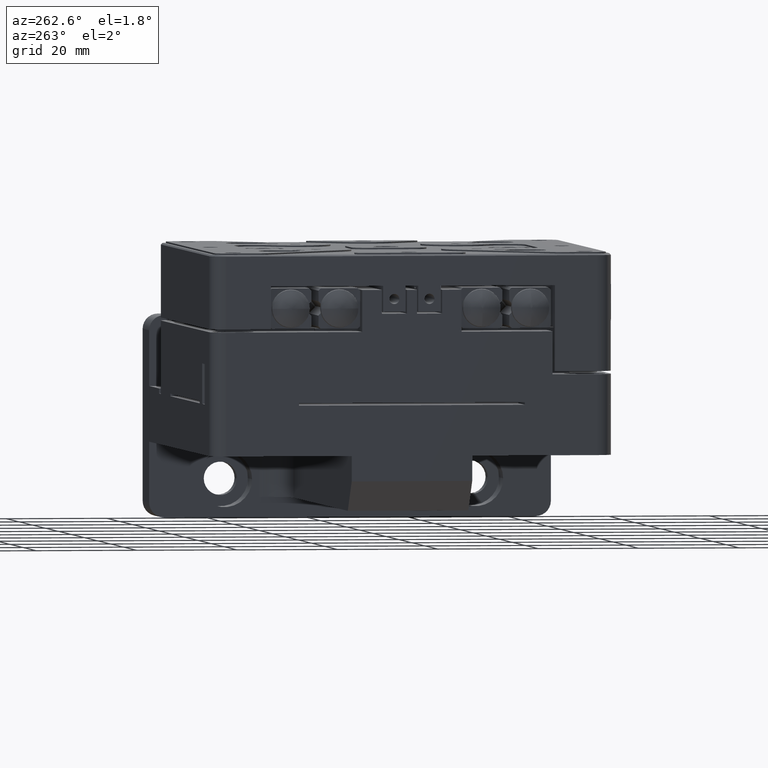
[diagram: clean part render]
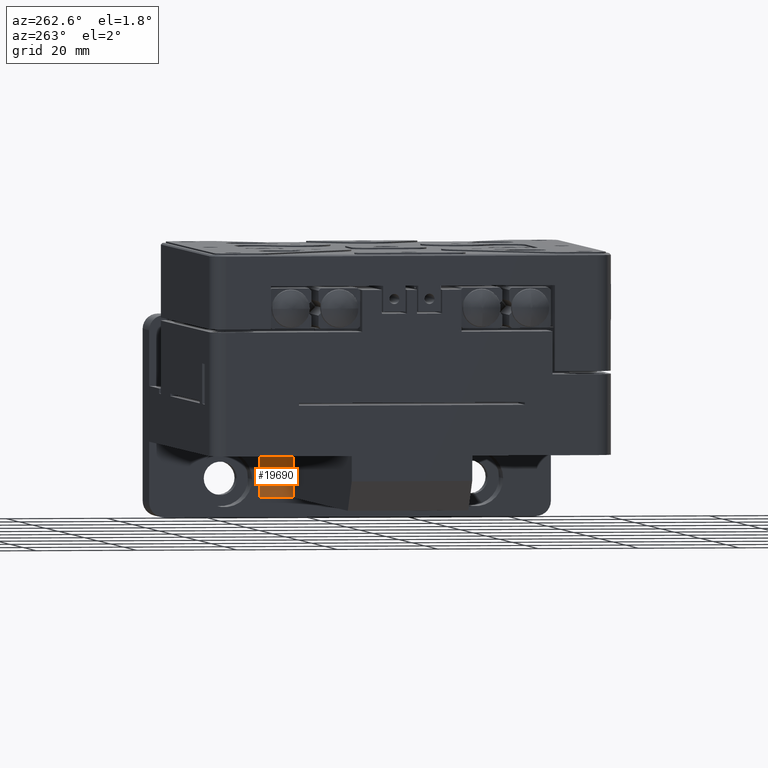
[diagram: same view with one face highlighted and labeled with its STEP entity id]
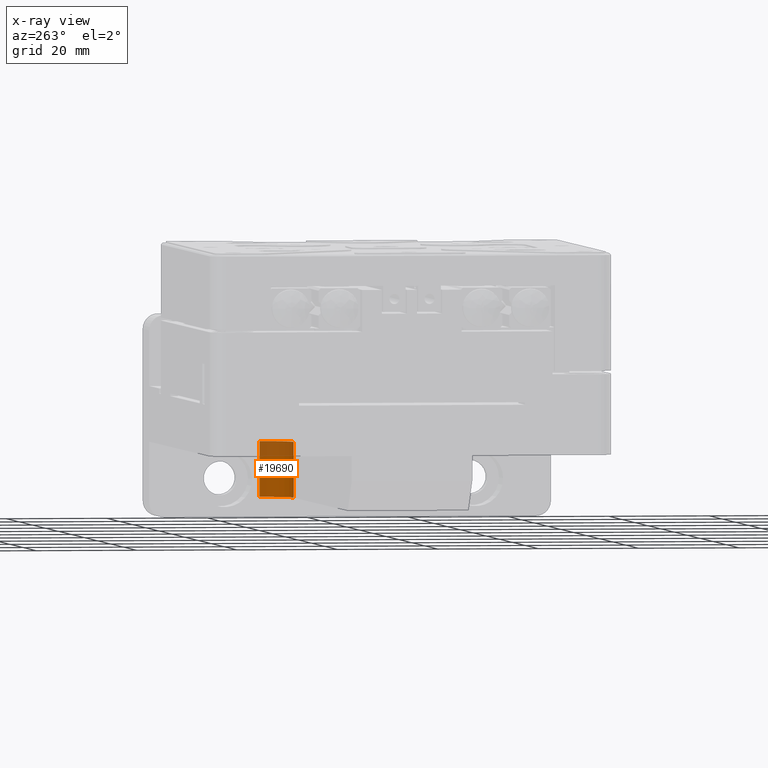
[diagram: x-ray of the same camera — body ghosted, the highlighted face saturated]
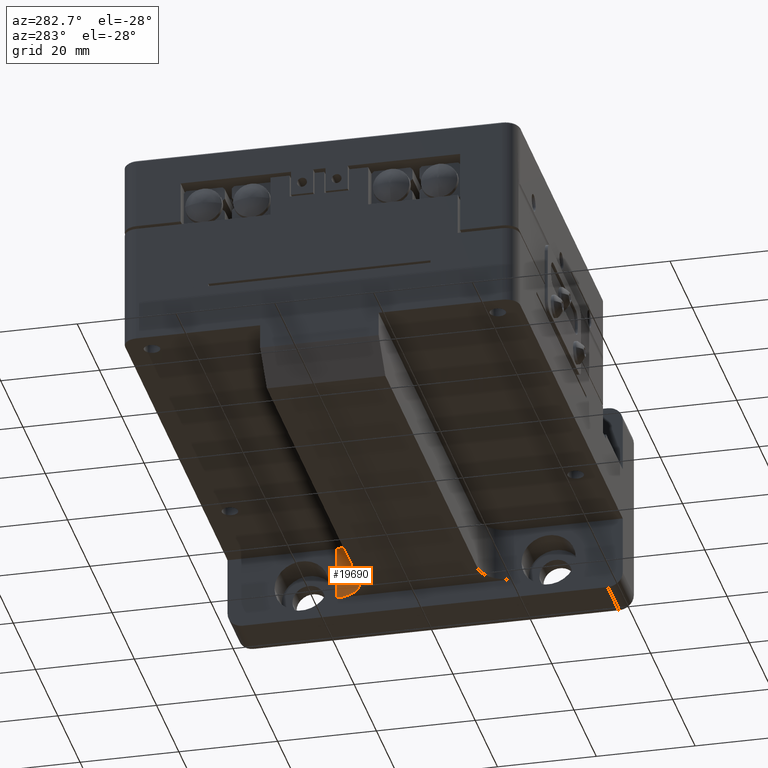
[diagram: same view with one face highlighted and labeled with its STEP entity id]
A machine part, auxiliary view. The second image highlights one B-rep face of the part: STEP entity #19690.
The next image is the same camera in x-ray: the body ghosted, the highlighted face saturated — about 27% of this face is hidden behind the body in this view.
A second angle (auxiliary view) of the same face is appended — the face is thin or edge-on in the first view.
In plain terms, the highlighted cylindrical surface (edge-blend (fillet) strip) has radius 6 mm, axis along (0, -0, -1).
Its self-contained STEP definition (entity closure, byte-faithful):
#1161 = EDGE_CURVE ( 'NONE', #46824, #38903, #4041, .T. ) ;
#1214 = DIRECTION ( 'NONE',  ( -1.000000000000000000, -2.312964634635740985E-16, -0.000000000000000000 ) ) ;
#1704 = ORIENTED_EDGE ( 'NONE', *, *, #8218, .T. ) ;
#3495 = DIRECTION ( 'NONE',  ( 1.000000000000000000, 2.312964634635740985E-16, -0.000000000000000000 ) ) ;
#4041 = CIRCLE ( 'NONE', #45418, 6.000000000000000000 ) ;
#5273 = DIRECTION ( 'NONE',  ( -1.000000000000000000, -2.312964634635740985E-16, 0.000000000000000000 ) ) ;
#7143 = VERTEX_POINT ( 'NONE', #35405 ) ;
#7940 = VERTEX_POINT ( 'NONE', #30851 ) ;
#8218 = EDGE_CURVE ( 'NONE', #46824, #7940, #18279, .T. ) ;
#12592 = DIRECTION ( 'NONE',  ( 2.891205793294678326E-16, -1.000000000000000000, 0.000000000000000000 ) ) ;
#13049 = AXIS2_PLACEMENT_3D ( 'NONE', #49810, #28558, #12592 ) ;
#13429 = EDGE_CURVE ( 'NONE', #7143, #7940, #21724, .T. ) ;
#13862 = CARTESIAN_POINT ( 'NONE',  ( -4.999999999999990230, 10.00000000000000888, -18.00000000000000711 ) ) ;
#16961 = CARTESIAN_POINT ( 'NONE',  ( -4.999999999999992006, 16.00000000000000711, -12.00000000000000000 ) ) ;
#17680 = DIRECTION ( 'NONE',  ( 2.891205793294678326E-16, -1.000000000000000000, 0.000000000000000000 ) ) ;
#18279 = LINE ( 'NONE', #25028, #18471 ) ;
#18471 = VECTOR ( 'NONE', #1214, 1000.000000000000000 ) ;
#19690 = ADVANCED_FACE ( 'NONE', ( #49260 ), #45395, .F. ) ;
#21724 = CIRCLE ( 'NONE', #53441, 6.000000000000000000 ) ;
#23189 = CARTESIAN_POINT ( 'NONE',  ( -4.999999999999992006, 16.00000000000001066, -18.00000000000000711 ) ) ;
#25028 = CARTESIAN_POINT ( 'NONE',  ( -4.999999999999990230, 10.00000000000001066, -18.00000000000000711 ) ) ;
#28558 = DIRECTION ( 'NONE',  ( -1.000000000000000000, -2.312964634635740985E-16, 0.000000000000000000 ) ) ;
#29074 = ORIENTED_EDGE ( 'NONE', *, *, #34067, .T. ) ;
#30851 = CARTESIAN_POINT ( 'NONE',  ( -16.00000000000000000, 10.00000000000000888, -18.00000000000000711 ) ) ;
#34067 = EDGE_CURVE ( 'NONE', #7143, #38903, #35359, .T. ) ;
#34251 = CARTESIAN_POINT ( 'NONE',  ( 0.000000000000000000, 16.00000000000000711, -12.00000000000000000 ) ) ;
#35359 = LINE ( 'NONE', #34251, #46558 ) ;
#35405 = CARTESIAN_POINT ( 'NONE',  ( -16.00000000000000711, 16.00000000000000711, -12.00000000000000000 ) ) ;
#35773 = EDGE_LOOP ( 'NONE', ( #29074, #36130, #1704, #48690 ) ) ;
#36130 = ORIENTED_EDGE ( 'NONE', *, *, #1161, .F. ) ;
#38903 = VERTEX_POINT ( 'NONE', #16961 ) ;
#45151 = DIRECTION ( 'NONE',  ( 0.000000000000000000, -1.000000000000000000, 0.000000000000000000 ) ) ;
#45395 = CYLINDRICAL_SURFACE ( 'NONE', #13049, 6.000000000000000000 ) ;
#45418 = AXIS2_PLACEMENT_3D ( 'NONE', #23189, #5273, #17680 ) ;
#46558 = VECTOR ( 'NONE', #48032, 1000.000000000000000 ) ;
#46824 = VERTEX_POINT ( 'NONE', #13862 ) ;
#48032 = DIRECTION ( 'NONE',  ( 1.000000000000000000, 0.000000000000000000, -0.000000000000000000 ) ) ;
#48690 = ORIENTED_EDGE ( 'NONE', *, *, #13429, .F. ) ;
#49260 = FACE_OUTER_BOUND ( 'NONE', #35773, .T. ) ;
#49810 = CARTESIAN_POINT ( 'NONE',  ( -4.999999999999992006, 16.00000000000001066, -18.00000000000000711 ) ) ;
#53441 = AXIS2_PLACEMENT_3D ( 'NONE', #53719, #3495, #45151 ) ;
#53719 = CARTESIAN_POINT ( 'NONE',  ( -16.00000000000000355, 16.00000000000000711, -18.00000000000000711 ) ) ;